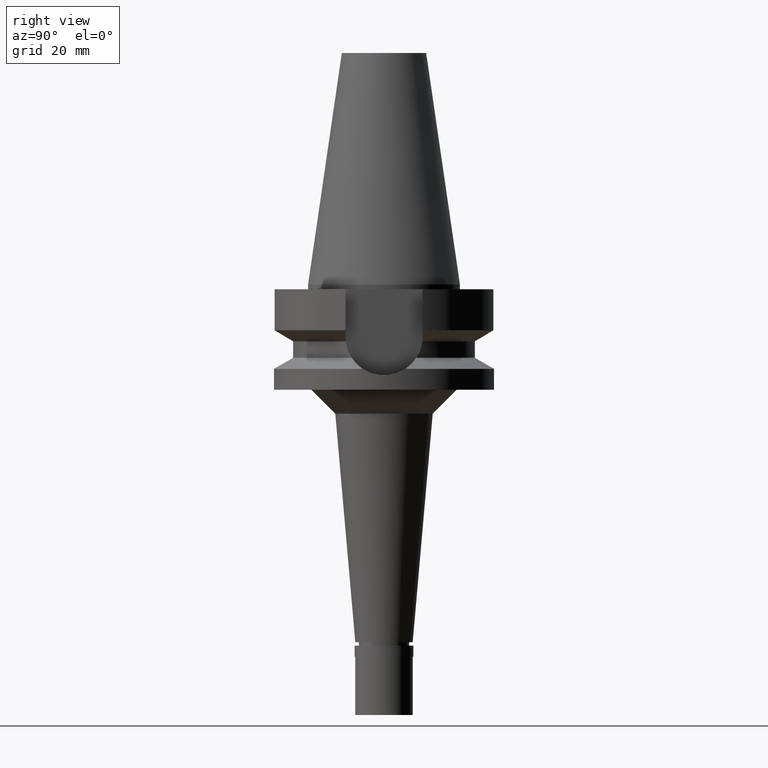
[diagram: clean part render]
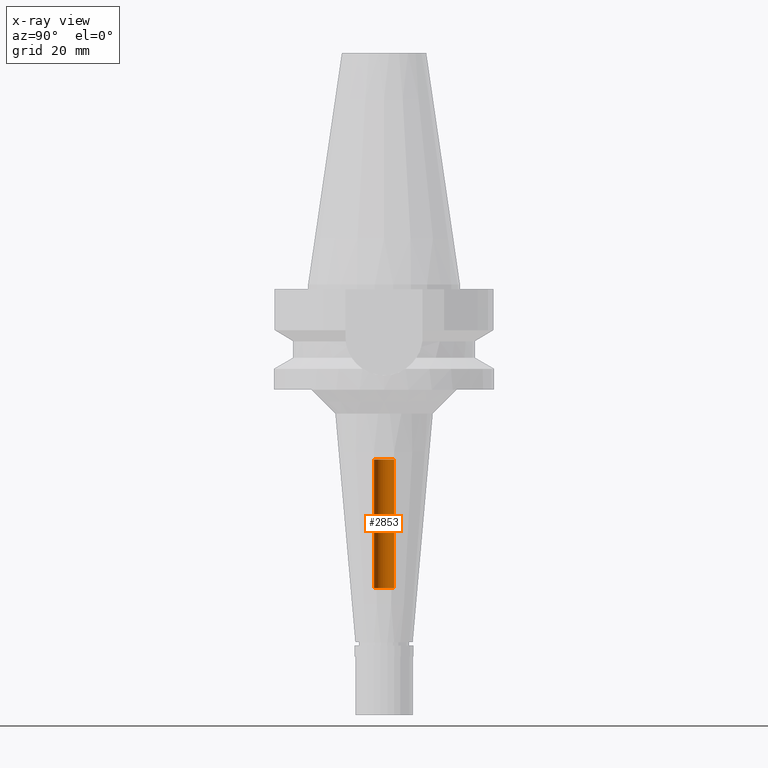
[diagram: x-ray — body ghosted, one internal face saturated and labeled with its STEP entity id]
A machine part, right view, then the same camera in x-ray: the body is ghosted and one INTERNAL B-rep face — a face not visible from any outside direction — is saturated and labeled: STEP entity #2853.
In plain terms, the highlighted cylindrical surface (edge-blend (fillet) strip) has radius 2.1 mm, axis along (0, 0, -1).
Its self-contained STEP definition (entity closure, byte-faithful):
#12 = CARTESIAN_POINT ( 'NONE',  ( 0.0000000000000000000, -2.100000000000000089, -36.60000000000000142 ) ) ;
#96 = EDGE_CURVE ( 'NONE', #2396, #280, #441, .T. ) ;
#104 = FACE_OUTER_BOUND ( 'NONE', #108, .T. ) ;
#108 = EDGE_LOOP ( 'NONE', ( #764, #724, #1253, #1955 ) ) ;
#220 = CIRCLE ( 'NONE', #1884, 2.100000000000000089 ) ;
#280 = VERTEX_POINT ( 'NONE', #12 ) ;
#343 = DIRECTION ( 'NONE',  ( 0.0000000000000000000, 0.0000000000000000000, -1.000000000000000000 ) ) ;
#441 = LINE ( 'NONE', #1241, #809 ) ;
#559 = CARTESIAN_POINT ( 'NONE',  ( 0.0000000000000000000, 2.100000000000000089, -63.50000000000000000 ) ) ;
#638 = EDGE_CURVE ( 'NONE', #1326, #690, #1299, .T. ) ;
#655 = AXIS2_PLACEMENT_3D ( 'NONE', #1244, #343, #1664 ) ;
#690 = VERTEX_POINT ( 'NONE', #2648 ) ;
#724 = ORIENTED_EDGE ( 'NONE', *, *, #96, .F. ) ;
#764 = ORIENTED_EDGE ( 'NONE', *, *, #1596, .T. ) ;
#809 = VECTOR ( 'NONE', #1675, 1000.000000000000000 ) ;
#1056 = EDGE_CURVE ( 'NONE', #2396, #1326, #1454, .T. ) ;
#1069 = AXIS2_PLACEMENT_3D ( 'NONE', #1248, #1916, #1496 ) ;
#1194 = CARTESIAN_POINT ( 'NONE',  ( 0.0000000000000000000, 1.899672114836999856E-14, -36.60000000000000142 ) ) ;
#1218 = CYLINDRICAL_SURFACE ( 'NONE', #1069, 2.100000000000000089 ) ;
#1241 = CARTESIAN_POINT ( 'NONE',  ( 0.0000000000000000000, -2.100000000000000089, -63.50000000000000000 ) ) ;
#1244 = CARTESIAN_POINT ( 'NONE',  ( 0.0000000000000000000, 1.899672114836999856E-14, -63.50000000000000000 ) ) ;
#1248 = CARTESIAN_POINT ( 'NONE',  ( 0.0000000000000000000, 1.899672114836999856E-14, 55.12000000000000455 ) ) ;
#1253 = ORIENTED_EDGE ( 'NONE', *, *, #1056, .T. ) ;
#1299 = LINE ( 'NONE', #559, #1808 ) ;
#1326 = VERTEX_POINT ( 'NONE', #2490 ) ;
#1454 = CIRCLE ( 'NONE', #655, 2.100000000000000089 ) ;
#1496 = DIRECTION ( 'NONE',  ( 0.0000000000000000000, -1.000000000000000000, 0.0000000000000000000 ) ) ;
#1549 = DIRECTION ( 'NONE',  ( 0.0000000000000000000, 1.000000000000000000, 0.0000000000000000000 ) ) ;
#1596 = EDGE_CURVE ( 'NONE', #690, #280, #220, .T. ) ;
#1664 = DIRECTION ( 'NONE',  ( 0.0000000000000000000, -1.000000000000000000, 0.0000000000000000000 ) ) ;
#1675 = DIRECTION ( 'NONE',  ( 0.0000000000000000000, 0.0000000000000000000, 1.000000000000000000 ) ) ;
#1808 = VECTOR ( 'NONE', #2409, 1000.000000000000000 ) ;
#1884 = AXIS2_PLACEMENT_3D ( 'NONE', #1194, #2108, #1549 ) ;
#1916 = DIRECTION ( 'NONE',  ( 0.0000000000000000000, 0.0000000000000000000, -1.000000000000000000 ) ) ;
#1955 = ORIENTED_EDGE ( 'NONE', *, *, #638, .T. ) ;
#2108 = DIRECTION ( 'NONE',  ( 0.0000000000000000000, 0.0000000000000000000, 1.000000000000000000 ) ) ;
#2258 = CARTESIAN_POINT ( 'NONE',  ( 0.0000000000000000000, -2.100000000000000089, -63.50000000000000000 ) ) ;
#2396 = VERTEX_POINT ( 'NONE', #2258 ) ;
#2409 = DIRECTION ( 'NONE',  ( 0.0000000000000000000, 0.0000000000000000000, 1.000000000000000000 ) ) ;
#2490 = CARTESIAN_POINT ( 'NONE',  ( 0.0000000000000000000, 2.100000000000000089, -63.50000000000000000 ) ) ;
#2648 = CARTESIAN_POINT ( 'NONE',  ( 0.0000000000000000000, 2.100000000000000089, -36.60000000000000142 ) ) ;
#2853 = ADVANCED_FACE ( 'NONE', ( #104 ), #1218, .F. ) ;